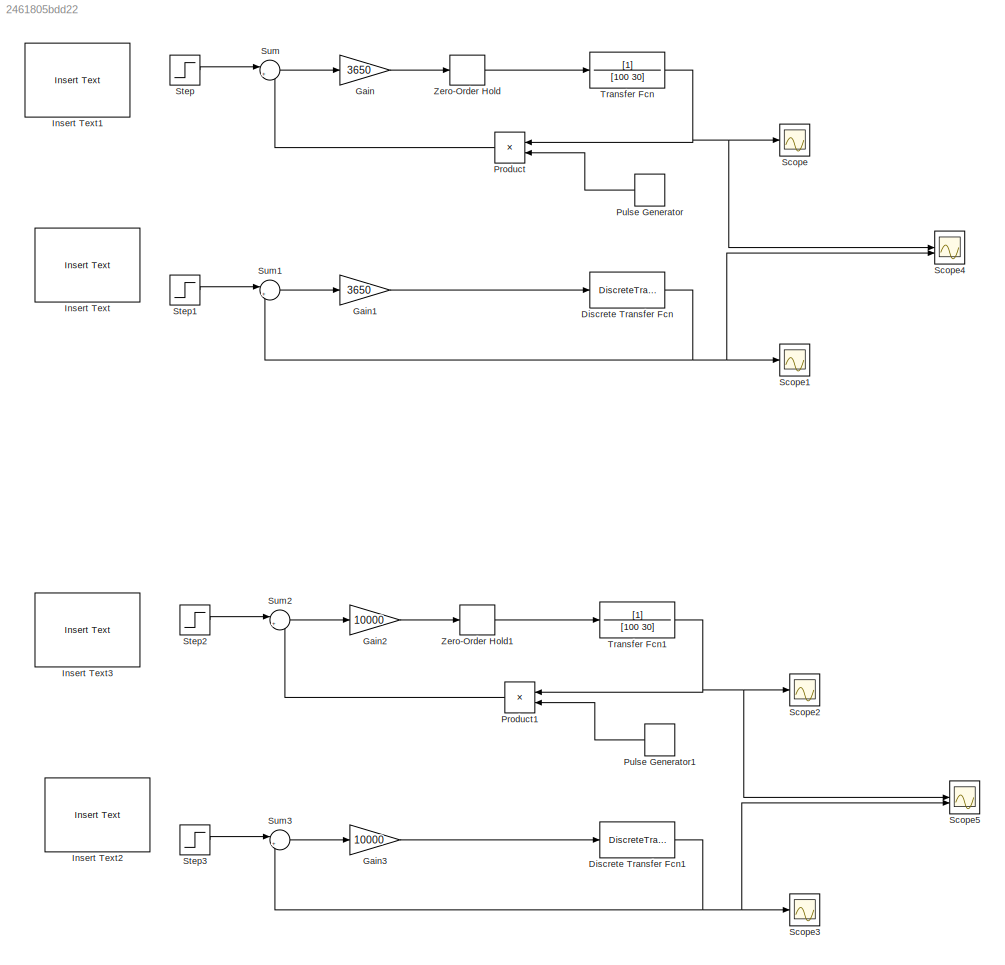
MODEL slx_2461805bdd22
KIND model
CONFIG AbsTol = auto
CONFIG EnableMultiTasking = off
CONFIG FixedStep = auto
CONFIG MaxStep = auto
CONFIG MinStep = auto
CONFIG RelTol = 1e-3
CONFIG SampleTimeConstraint = Unconstrained
CONFIG SolverName = VariableStepAuto
CONFIG StartTime = 0.0
CONFIG StopTime = 2
BLOCK [DiscreteTransferFcn] Discrete Transfer Fcn
  Denominator = [1 -0.997]
  InputPortMap = u0
  Numerator = [9.985e-5]
  SampleTime = 0.01
BLOCK [DiscreteTransferFcn] Discrete Transfer Fcn1
  Denominator = [1 -0.997]
  InputPortMap = u0
  Numerator = [9.985e-5]
  SampleTime = 0.01
BLOCK [Gain] Gain
  Gain = 3650
BLOCK [Gain] Gain1
  Gain = 3650
BLOCK [Gain] Gain2
  Gain = 10000
BLOCK [Gain] Gain3
  Gain = 10000
BLOCK [Reference] Insert Text  REF=visiontextngfix/Insert Text
  SourceBlock = visiontextngfix/Insert Text
  SourceType = Insert Text
BLOCK [Reference] Insert Text1  REF=visiontextngfix/Insert Text
  SourceBlock = visiontextngfix/Insert Text
  SourceType = Insert Text
BLOCK [Reference] Insert Text2  REF=visiontextngfix/Insert Text
  SourceBlock = visiontextngfix/Insert Text
  SourceType = Insert Text
BLOCK [Reference] Insert Text3  REF=visiontextngfix/Insert Text
  SourceBlock = visiontextngfix/Insert Text
  SourceType = Insert Text
BLOCK [Product] Product
  NameLocation = top
BLOCK [Product] Product1
  NameLocation = top
BLOCK [DiscretePulseGenerator] Pulse Generator
  NameLocation = top
  Period = 0.01
  PulseType = Time based
  PulseWidth = 0.1
BLOCK [DiscretePulseGenerator] Pulse Generator1
  NameLocation = top
  Period = 0.01
  PulseType = Time based
  PulseWidth = 0.1
BLOCK [Scope] Scope
  Floating = off
  NumInputPorts = 1
  ScopeSpecificationString = Simulink.scopes.TimeScopeBlockCfg('CurrentConfiguration', extmgr.ConfigurationSet(extmgr.Configuration('Core','General UI',true),extmgr.Configuration('Core','Source UI',true),extmgr.Configuration('Sources','WiredSimulink',true),extmgr.Configuration('Visuals','Time Domain',true,'SerializedDisplays',{struct('MinYLimReal','-0.12398','MaxYLimReal','1.11583','YLabelReal','','MinYLimMag','0.00000','MaxY...<+1361ch>
BLOCK [Scope] Scope1
  Floating = off
  NumInputPorts = 1
  ScopeSpecificationString = Simulink.scopes.TimeScopeBlockCfg('CurrentConfiguration', extmgr.ConfigurationSet(extmgr.Configuration('Core','General UI',true),extmgr.Configuration('Core','Source UI',true),extmgr.Configuration('Sources','WiredSimulink',true,'DataLoggingVariableName','ScopeData1'),extmgr.Configuration('Visuals','Time Domain',true,'SerializedDisplays',{struct('MinYLimReal','-0.11758','MaxYLimReal','1.05822','YLab...<+1380ch>
BLOCK [Scope] Scope2
  Floating = off
  NumInputPorts = 1
  ScopeSpecificationString = Simulink.scopes.TimeScopeBlockCfg('CurrentConfiguration', extmgr.ConfigurationSet(extmgr.Configuration('Core','General UI',true),extmgr.Configuration('Core','Source UI',true),extmgr.Configuration('Sources','WiredSimulink',true,'DataLoggingVariableName','ScopeData2'),extmgr.Configuration('Visuals','Time Domain',true,'SerializedDisplays',{struct('MinYLimReal','-0.12398','MaxYLimReal','1.11583','YLab...<+1388ch>
BLOCK [Scope] Scope3
  Floating = off
  NumInputPorts = 1
  ScopeSpecificationString = Simulink.scopes.TimeScopeBlockCfg('CurrentConfiguration', extmgr.ConfigurationSet(extmgr.Configuration('Core','General UI',true),extmgr.Configuration('Core','Source UI',true),extmgr.Configuration('Sources','WiredSimulink',true,'DataLoggingVariableName','ScopeData3'),extmgr.Configuration('Visuals','Time Domain',true,'SerializedDisplays',{struct('MinYLimReal','-0.11758','MaxYLimReal','1.05822','YLab...<+1380ch>
BLOCK [Scope] Scope4
  Floating = off
  NumInputPorts = 2
  ScopeSpecificationString = Simulink.scopes.TimeScopeBlockCfg('CurrentConfiguration', extmgr.ConfigurationSet(extmgr.Configuration('Core','General UI',true),extmgr.Configuration('Core','Source UI',true),extmgr.Configuration('Sources','WiredSimulink',true,'DataLoggingVariableName','ScopeData1'),extmgr.Configuration('Visuals','Time Domain',true,'SerializedDisplays',{struct('MinYLimReal','-0.12398','MaxYLimReal','1.11583','YLab...<+1395ch>
BLOCK [Scope] Scope5
  Floating = off
  NumInputPorts = 2
  ScopeSpecificationString = Simulink.scopes.TimeScopeBlockCfg('CurrentConfiguration', extmgr.ConfigurationSet(extmgr.Configuration('Core','General UI',true),extmgr.Configuration('Core','Source UI',true),extmgr.Configuration('Sources','WiredSimulink',true,'DataLoggingVariableName','ScopeData2'),extmgr.Configuration('Visuals','Time Domain',true,'SerializedDisplays',{struct('MinYLimReal','0.99282','MaxYLimReal','0.99888','YLabe...<+1414ch>
BLOCK [Step] Step
  SampleTime = 0
BLOCK [Step] Step1
  SampleTime = 0
BLOCK [Step] Step2
  SampleTime = 0
BLOCK [Step] Step3
  SampleTime = 0
BLOCK [Sum] Sum
  Inputs = |+-
BLOCK [Sum] Sum1
  Inputs = |+-
BLOCK [Sum] Sum2
  Inputs = |+-
BLOCK [Sum] Sum3
  Inputs = |+-
BLOCK [TransferFcn] Transfer Fcn
  Denominator = [100 30]
BLOCK [TransferFcn] Transfer Fcn1
  Denominator = [100 30]
BLOCK [ZeroOrderHold] Zero-Order Hold
  SampleTime = 0.01
BLOCK [ZeroOrderHold] Zero-Order Hold1
  SampleTime = 0.01
NET Discrete Transfer Fcn1:1 -> Scope3:1, Scope5:2, Sum3:2
NET Discrete Transfer Fcn:1 -> Scope1:1, Scope4:2, Sum1:2
LINE Gain1:1 -> Discrete Transfer Fcn:1
LINE Gain2:1 -> Zero-Order Hold1:1
LINE Gain3:1 -> Discrete Transfer Fcn1:1
LINE Gain:1 -> Zero-Order Hold:1
LINE Product1:1 -> Sum2:2
LINE Product:1 -> Sum:2
LINE Pulse Generator1:1 -> Product1:2
LINE Pulse Generator:1 -> Product:2
LINE Step1:1 -> Sum1:1
LINE Step2:1 -> Sum2:1
LINE Step3:1 -> Sum3:1
LINE Step:1 -> Sum:1
LINE Sum1:1 -> Gain1:1
LINE Sum2:1 -> Gain2:1
LINE Sum3:1 -> Gain3:1
LINE Sum:1 -> Gain:1
NET Transfer Fcn1:1 -> Product1:1, Scope2:1, Scope5:1
NET Transfer Fcn:1 -> Product:1, Scope4:1, Scope:1
LINE Zero-Order Hold1:1 -> Transfer Fcn1:1
LINE Zero-Order Hold:1 -> Transfer Fcn:1
note: NET lines group one-source signal fan-out (src -> all destinations, sorted); 1:1 wires keep LINE
